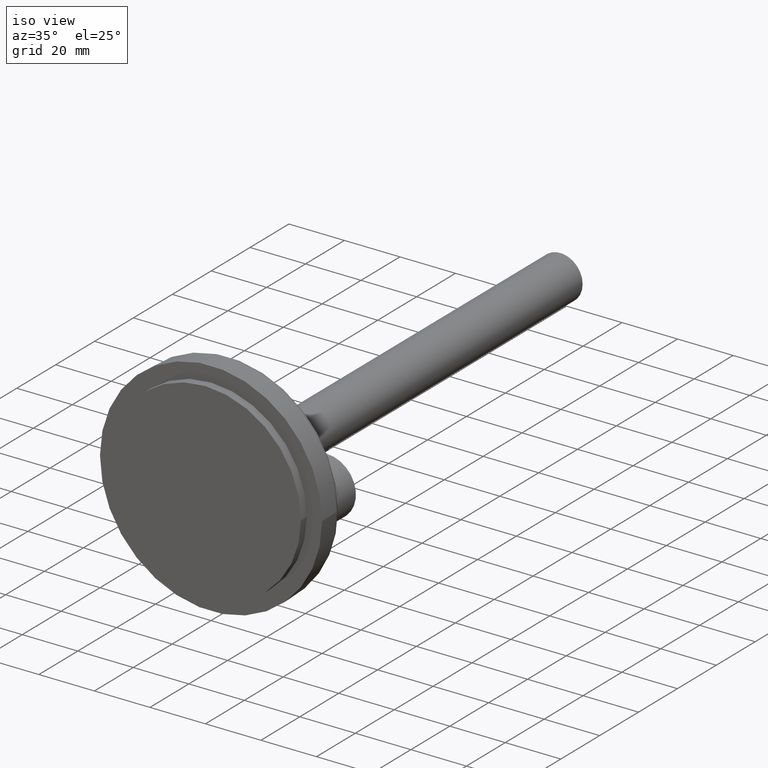
[diagram: clean part render]
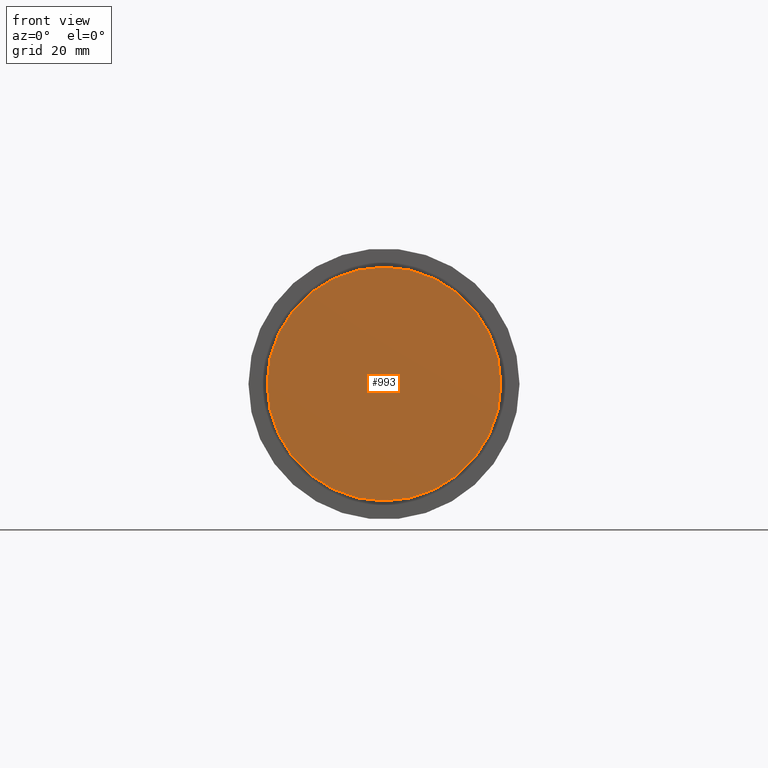
[diagram: tour spotlight — one face highlighted and labeled with its STEP entity id]
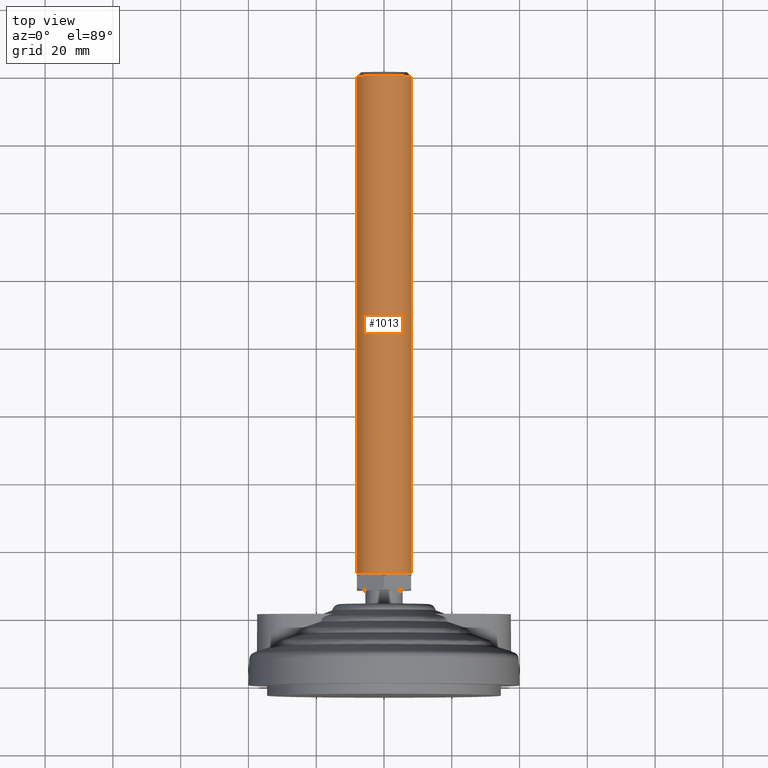
[diagram: tour spotlight — one face highlighted and labeled with its STEP entity id]
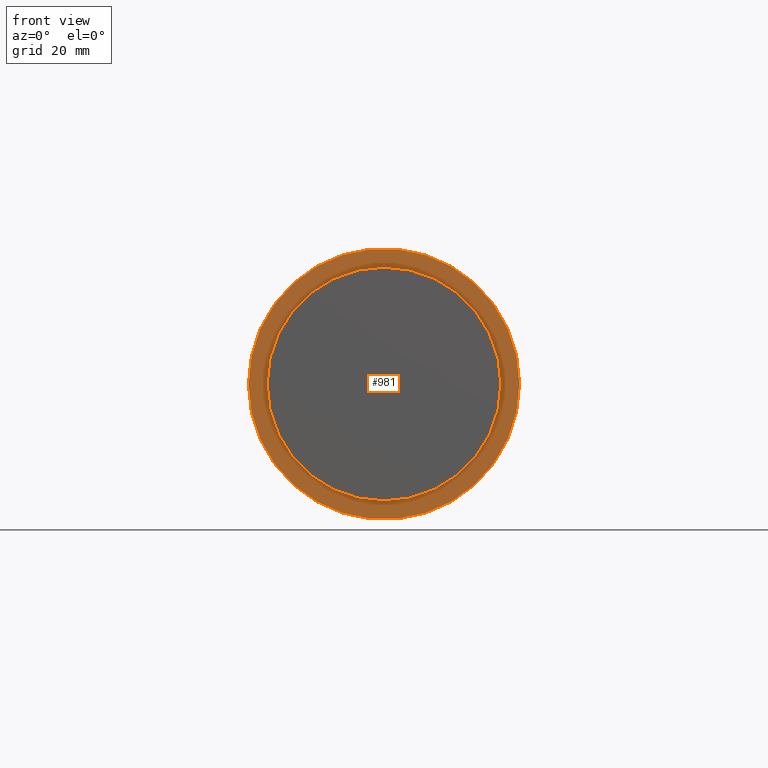
[diagram: tour spotlight — one face highlighted and labeled with its STEP entity id]
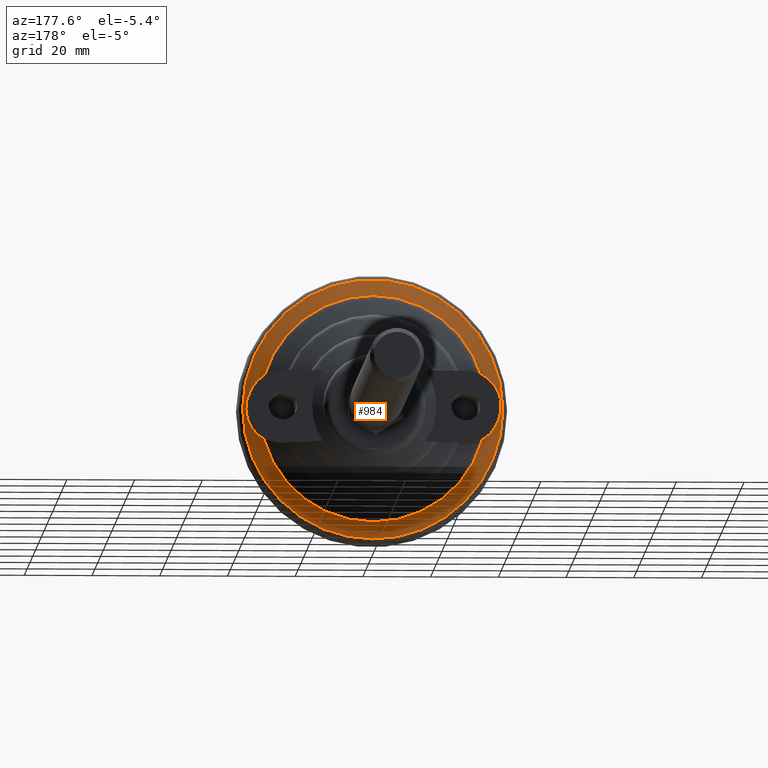
[diagram: tour spotlight — one face highlighted and labeled with its STEP entity id]
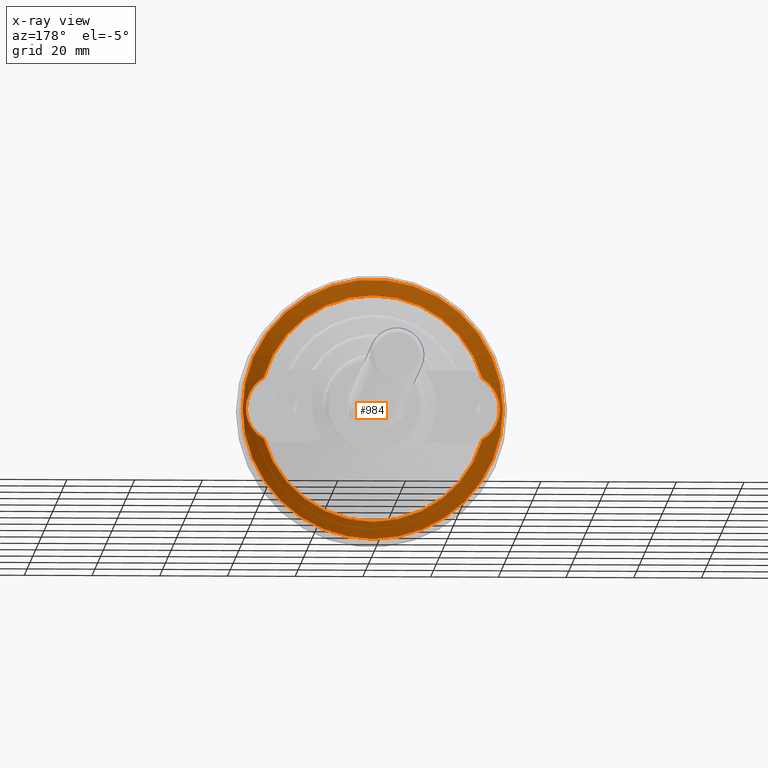
[diagram: x-ray of the same camera — body ghosted, this tour face saturated]
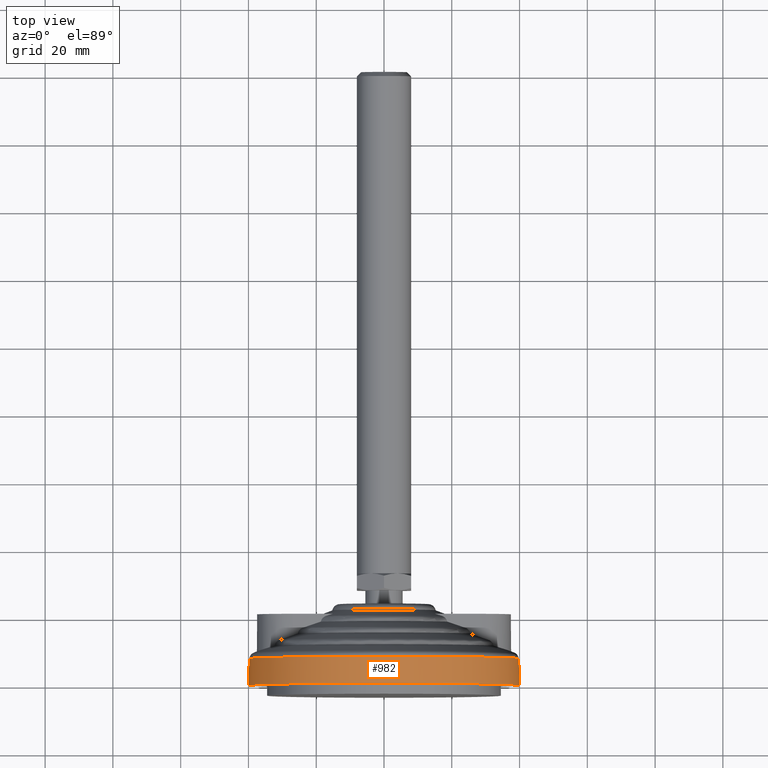
[diagram: tour spotlight — one face highlighted and labeled with its STEP entity id]
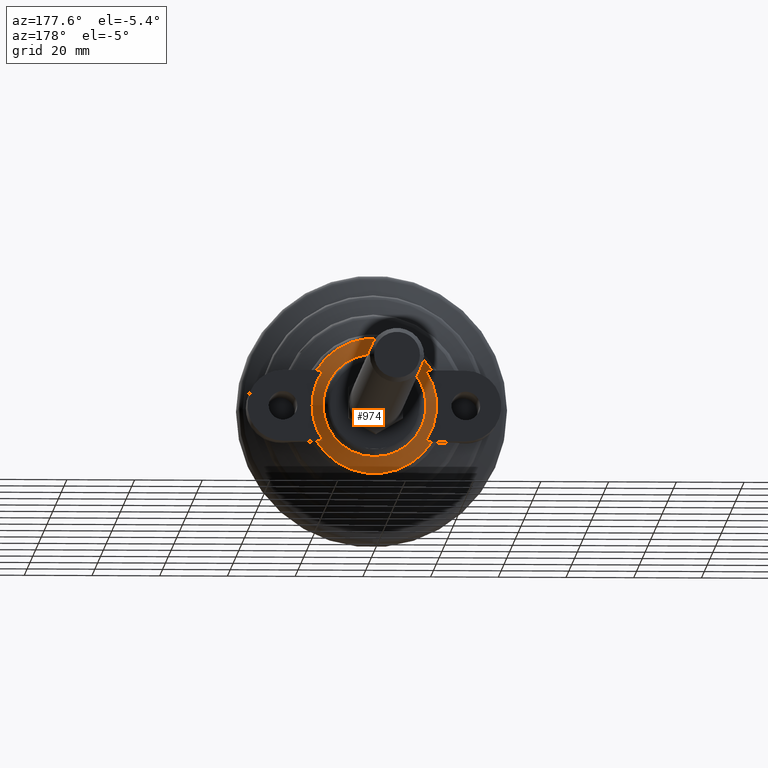
[diagram: tour spotlight — one face highlighted and labeled with its STEP entity id]
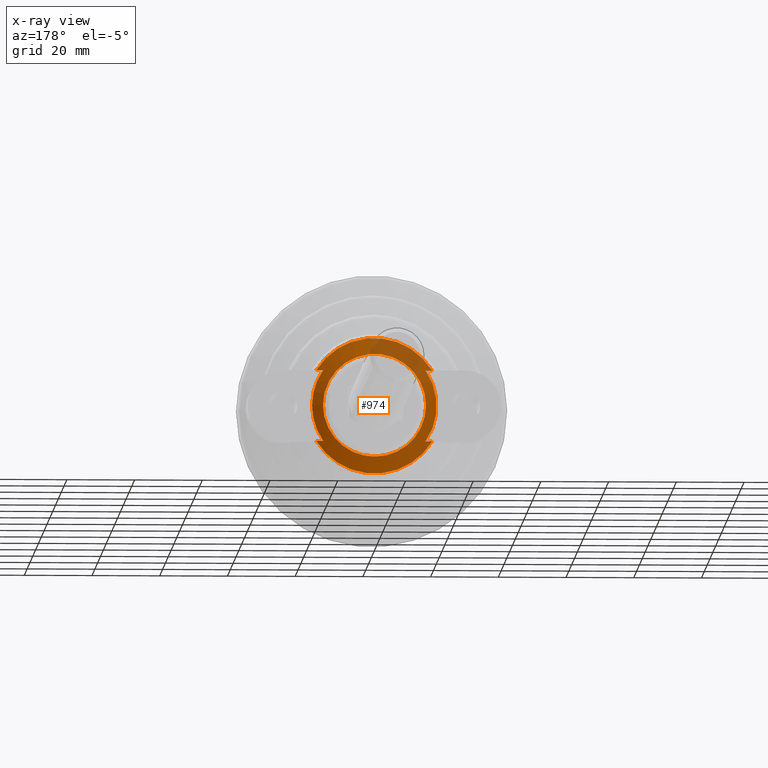
[diagram: x-ray of the same camera — body ghosted, this tour face saturated]
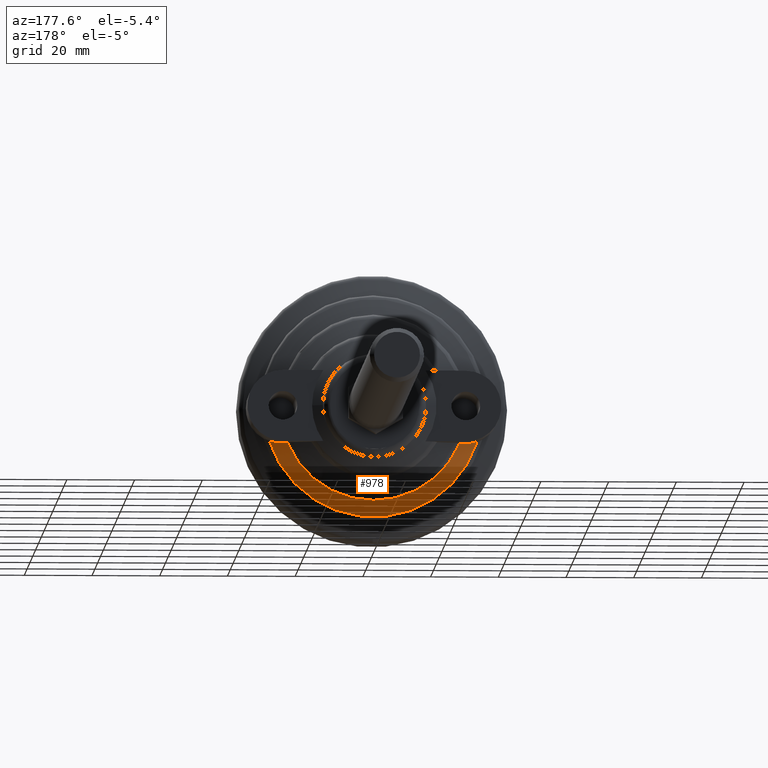
[diagram: tour spotlight — one face highlighted and labeled with its STEP entity id]
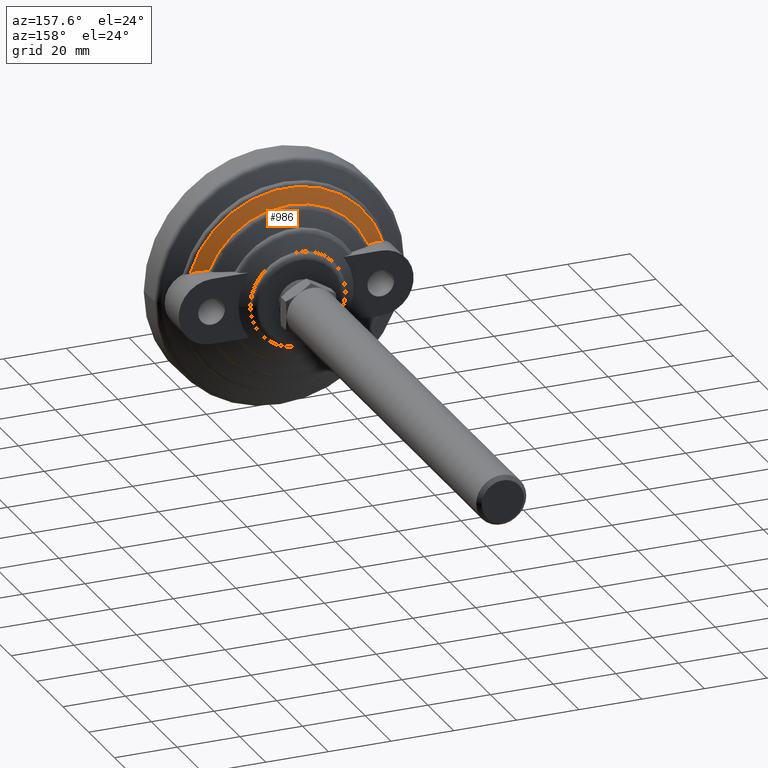
[diagram: tour spotlight — one face highlighted and labeled with its STEP entity id]
A machine part: a face-by-face anatomy tour. The part has 58 B-rep faces; the first image is the clean iso view, then the 8 largest visible faces are spotlighted one at a time (largest first), each with its STEP entity span.

Face 1 — front view, entity #993. In plain terms, the highlighted planar face has unit normal (0, -1, 0).
Definition (entity closure, byte-faithful):
#132=PLANE('',#1148);
#176=FACE_OUTER_BOUND('',#238,.T.);
#238=EDGE_LOOP('',(#842,#843));
#345=CIRCLE('',#1114,34.5);
#346=CIRCLE('',#1115,34.5);
#444=VERTEX_POINT('',#1844);
#445=VERTEX_POINT('',#1846);
#567=EDGE_CURVE('',#444,#445,#345,.T.);
#568=EDGE_CURVE('',#445,#444,#346,.T.);
#842=ORIENTED_EDGE('',*,*,#568,.F.);
#843=ORIENTED_EDGE('',*,*,#567,.F.);
#993=ADVANCED_FACE('',(#176),#132,.T.);
#1114=AXIS2_PLACEMENT_3D('',#1847,#1317,#1318);
#1115=AXIS2_PLACEMENT_3D('',#1848,#1319,#1320);
#1148=AXIS2_PLACEMENT_3D('',#1897,#1388,#1389);
#1317=DIRECTION('center_axis',(0.,1.,0.));
#1318=DIRECTION('ref_axis',(-1.,0.,0.));
#1319=DIRECTION('center_axis',(0.,1.,0.));
#1320=DIRECTION('ref_axis',(-1.,0.,0.));
#1388=DIRECTION('center_axis',(0.,-1.,0.));
#1389=DIRECTION('ref_axis',(0.,0.,-1.));
#1844=CARTESIAN_POINT('',(34.5,-3.,-4.22503145705837E-15));
#1846=CARTESIAN_POINT('',(-34.5,-3.,0.));
#1847=CARTESIAN_POINT('Origin',(0.,-3.,0.));
#1848=CARTESIAN_POINT('Origin',(0.,-3.,0.));
#1897=CARTESIAN_POINT('Origin',(-17.25,-3.,0.));

Face 2 — top view, entity #1013. In plain terms, the highlighted cylindrical surface (bore or boss wall) has radius 8 mm, axis along (0, -1, 0).
Definition (entity closure, byte-faithful):
#196=FACE_OUTER_BOUND('',#258,.T.);
#258=EDGE_LOOP('',(#922,#923,#924,#925,#926,#927,#928,#929,#930,#931));
#288=LINE('',#2042,#313);
#313=VECTOR('',#1471,8.);
#367=CIRCLE('',#1157,8.);
#368=CIRCLE('',#1159,8.);
#369=CIRCLE('',#1161,8.);
#370=CIRCLE('',#1163,8.);
#371=CIRCLE('',#1165,8.);
#372=CIRCLE('',#1167,8.);
#379=CIRCLE('',#1181,8.);
#380=CIRCLE('',#1182,8.);
#460=VERTEX_POINT('',#1901);
#466=VERTEX_POINT('',#1922);
#471=VERTEX_POINT('',#1942);
#473=VERTEX_POINT('',#1957);
#477=VERTEX_POINT('',#1975);
#481=VERTEX_POINT('',#1993);
#483=VERTEX_POINT('',#2032);
#484=VERTEX_POINT('',#2033);
#622=EDGE_CURVE('',#477,#473,#367,.T.);
#623=EDGE_CURVE('',#481,#477,#368,.T.);
#624=EDGE_CURVE('',#460,#481,#369,.T.);
#625=EDGE_CURVE('',#471,#460,#370,.T.);
#626=EDGE_CURVE('',#466,#471,#371,.T.);
#627=EDGE_CURVE('',#473,#466,#372,.T.);
#634=EDGE_CURVE('',#483,#484,#379,.T.);
#635=EDGE_CURVE('',#484,#483,#380,.T.);
#639=EDGE_CURVE('',#466,#484,#288,.T.);
#922=ORIENTED_EDGE('',*,*,#623,.F.);
#923=ORIENTED_EDGE('',*,*,#624,.F.);
#924=ORIENTED_EDGE('',*,*,#625,.F.);
#925=ORIENTED_EDGE('',*,*,#626,.F.);
#926=ORIENTED_EDGE('',*,*,#639,.T.);
#927=ORIENTED_EDGE('',*,*,#635,.T.);
#928=ORIENTED_EDGE('',*,*,#634,.T.);
#929=ORIENTED_EDGE('',*,*,#639,.F.);
#930=ORIENTED_EDGE('',*,*,#627,.F.);
#931=ORIENTED_EDGE('',*,*,#622,.F.);
#958=CYLINDRICAL_SURFACE('',#1185,8.);
#1013=ADVANCED_FACE('',(#196),#958,.T.);
#1157=AXIS2_PLACEMENT_3D('',#2008,#1412,#1413);
#1159=AXIS2_PLACEMENT_3D('',#2010,#1416,#1417);
#1161=AXIS2_PLACEMENT_3D('',#2012,#1420,#1421);
#1163=AXIS2_PLACEMENT_3D('',#2014,#1424,#1425);
#1165=AXIS2_PLACEMENT_3D('',#2016,#1428,#1429);
#1167=AXIS2_PLACEMENT_3D('',#2018,#1432,#1433);
#1181=AXIS2_PLACEMENT_3D('',#2034,#1460,#1461);
#1182=AXIS2_PLACEMENT_3D('',#2035,#1462,#1463);
#1185=AXIS2_PLACEMENT_3D('',#2041,#1469,#1470);
#1412=DIRECTION('center_axis',(0.,-1.,0.));
#1413=DIRECTION('ref_axis',(1.,0.,0.));
#1416=DIRECTION('center_axis',(0.,-1.,0.));
#1417=DIRECTION('ref_axis',(1.,0.,0.));
#1420=DIRECTION('center_axis',(0.,-1.,0.));
#1421=DIRECTION('ref_axis',(1.,0.,0.));
#1424=DIRECTION('center_axis',(0.,-1.,0.));
#1425=DIRECTION('ref_axis',(1.,0.,0.));
#1428=DIRECTION('center_axis',(0.,-1.,0.));
#1429=DIRECTION('ref_axis',(1.,0.,0.));
#1432=DIRECTION('center_axis',(0.,-1.,0.));
#1433=DIRECTION('ref_axis',(1.,0.,0.));
#1460=DIRECTION('center_axis',(0.,-1.,0.));
#1461=DIRECTION('ref_axis',(1.,0.,0.));
#1462=DIRECTION('center_axis',(0.,-1.,0.));
#1463=DIRECTION('ref_axis',(1.,0.,0.));
#1469=DIRECTION('center_axis',(0.,-1.,0.));
#1470=DIRECTION('ref_axis',(1.,0.,0.));
#1471=DIRECTION('',(0.,1.,0.));
#1901=CARTESIAN_POINT('',(3.99999999999999,33.,-6.92820323027551));
#1922=CARTESIAN_POINT('',(-8.,33.,0.));
#1942=CARTESIAN_POINT('',(-3.99999999999999,33.,-6.92820323027551));
#1957=CARTESIAN_POINT('',(-3.99999999999999,33.,6.92820323027551));
#1975=CARTESIAN_POINT('',(3.99999999999999,33.,6.92820323027551));
#1993=CARTESIAN_POINT('',(8.,33.,0.));
#2008=CARTESIAN_POINT('Origin',(0.,33.,0.));
#2010=CARTESIAN_POINT('Origin',(0.,33.,0.));
#2012=CARTESIAN_POINT('Origin',(0.,33.,0.));
#2014=CARTESIAN_POINT('Origin',(0.,33.,0.));
#2016=CARTESIAN_POINT('Origin',(0.,33.,0.));
#2018=CARTESIAN_POINT('Origin',(0.,33.,0.));
#2032=CARTESIAN_POINT('',(8.,179.773,0.));
#2033=CARTESIAN_POINT('',(-8.,179.773,-9.79717439317883E-16));
#2034=CARTESIAN_POINT('Origin',(0.,179.773,0.));
#2035=CARTESIAN_POINT('Origin',(0.,179.773,0.));
#2041=CARTESIAN_POINT('Origin',(0.,106.3865,0.));
#2042=CARTESIAN_POINT('',(-8.,106.3865,-9.79717439317883E-16));

Face 3 — front view, entity #981. In plain terms, the highlighted planar face has unit normal (0, -1, 0).
Definition (entity closure, byte-faithful):
#99=FACE_BOUND('',#225,.T.);
#130=PLANE('',#1116);
#164=FACE_OUTER_BOUND('',#224,.T.);
#224=EDGE_LOOP('',(#773,#774));
#225=EDGE_LOOP('',(#775,#776));
#343=CIRCLE('',#1112,34.5);
#344=CIRCLE('',#1113,34.5);
#347=CIRCLE('',#1117,40.);
#348=CIRCLE('',#1118,40.);
#442=VERTEX_POINT('',#1840);
#443=VERTEX_POINT('',#1841);
#446=VERTEX_POINT('',#1850);
#447=VERTEX_POINT('',#1851);
#564=EDGE_CURVE('',#442,#443,#343,.T.);
#565=EDGE_CURVE('',#443,#442,#344,.T.);
#569=EDGE_CURVE('',#446,#447,#347,.T.);
#570=EDGE_CURVE('',#447,#446,#348,.T.);
#773=ORIENTED_EDGE('',*,*,#569,.F.);
#774=ORIENTED_EDGE('',*,*,#570,.F.);
#775=ORIENTED_EDGE('',*,*,#564,.T.);
#776=ORIENTED_EDGE('',*,*,#565,.T.);
#981=ADVANCED_FACE('',(#164,#99),#130,.T.);
#1112=AXIS2_PLACEMENT_3D('',#1842,#1312,#1313);
#1113=AXIS2_PLACEMENT_3D('',#1843,#1314,#1315);
#1116=AXIS2_PLACEMENT_3D('',#1849,#1321,#1322);
#1117=AXIS2_PLACEMENT_3D('',#1852,#1323,#1324);
#1118=AXIS2_PLACEMENT_3D('',#1853,#1325,#1326);
#1312=DIRECTION('center_axis',(0.,1.,0.));
#1313=DIRECTION('ref_axis',(-1.,0.,0.));
#1314=DIRECTION('center_axis',(0.,1.,0.));
#1315=DIRECTION('ref_axis',(-1.,0.,0.));
#1321=DIRECTION('center_axis',(0.,-1.,0.));
#1322=DIRECTION('ref_axis',(0.,0.,-1.));
#1323=DIRECTION('center_axis',(0.,1.,0.));
#1324=DIRECTION('ref_axis',(-1.,0.,0.));
#1325=DIRECTION('center_axis',(0.,1.,0.));
#1326=DIRECTION('ref_axis',(-1.,0.,0.));
#1840=CARTESIAN_POINT('',(-34.5,0.,0.));
#1841=CARTESIAN_POINT('',(34.5,0.,-4.22503145705837E-15));
#1842=CARTESIAN_POINT('Origin',(0.,0.,0.));
#1843=CARTESIAN_POINT('Origin',(0.,0.,0.));
#1849=CARTESIAN_POINT('Origin',(-37.25,0.,0.));
#1850=CARTESIAN_POINT('',(-40.,0.,0.));
#1851=CARTESIAN_POINT('',(40.,-5.55111512312578E-16,-4.89858719658941E-15));
#1852=CARTESIAN_POINT('Origin',(0.,0.,0.));
#1853=CARTESIAN_POINT('Origin',(0.,0.,0.));

Face 4 — auxiliary view, entity #984. An x-ray twin of the same camera follows (body ghosted, this face saturated) — the face is partly hidden behind the body. In plain terms, the highlighted conical surface has half-angle 68.505 deg.
Definition (entity closure, byte-faithful):
#44=CONICAL_SURFACE('',#1128,35.990964176577,1.19563632056962);
#105=B_SPLINE_CURVE_WITH_KNOTS('',3,(#1555,#1556,#1557,#1558,#1559,#1560,
#1561,#1562,#1563,#1564,#1565,#1566),.UNSPECIFIED.,.F.,.F.,(4,2,2,2,2,4),
(4.51569651905723,4.77049480673629,5.02529309441534,5.2800913820944,5.53488966977346,
5.59532760587313),.UNSPECIFIED.);
#106=B_SPLINE_CURVE_WITH_KNOTS('',3,(#1568,#1569,#1570,#1571,#1572,#1573,
#1574,#1575,#1576,#1577,#1578,#1579),.UNSPECIFIED.,.F.,.F.,(4,2,2,2,2,4),
(3.43606543224134,3.49650336834101,3.75130165602007,4.00609994369912,4.26089823137818,
4.51569651905723),.UNSPECIFIED.);
#117=B_SPLINE_CURVE_WITH_KNOTS('',3,(#1740,#1741,#1742,#1743,#1744,#1745,
#1746,#1747,#1748,#1749,#1750,#1751,#1752,#1753,#1754,#1755,#1756,#1757,
#1758,#1759,#1760,#1761),.UNSPECIFIED.,.F.,.F.,(4,2,2,2,2,2,2,2,2,2,4),
(3.43606543224134,3.49650336834101,3.75130165602007,4.00609994369912,4.26089823137818,
4.51569651905723,4.77049480673629,5.02529309441534,5.2800913820944,5.53488966977346,
5.59532760587313),.UNSPECIFIED.);
#167=FACE_OUTER_BOUND('',#228,.T.);
#228=EDGE_LOOP('',(#792,#793,#794,#795,#796,#797,#798,#799,#800,#801));
#279=LINE('',#1871,#304);
#304=VECTOR('',#1348,35.990964176577);
#342=CIRCLE('',#1110,33.552825195003);
#352=CIRCLE('',#1124,38.429103158151);
#353=CIRCLE('',#1125,38.429103158151);
#355=CIRCLE('',#1127,38.429103158151);
#356=CIRCLE('',#1129,33.552825195003);
#403=VERTEX_POINT('',#1543);
#404=VERTEX_POINT('',#1554);
#405=VERTEX_POINT('',#1567);
#430=VERTEX_POINT('',#1728);
#431=VERTEX_POINT('',#1739);
#451=VERTEX_POINT('',#1863);
#452=VERTEX_POINT('',#1864);
#453=VERTEX_POINT('',#1866);
#511=EDGE_CURVE('',#404,#403,#105,.T.);
#512=EDGE_CURVE('',#405,#404,#106,.T.);
#542=EDGE_CURVE('',#431,#430,#117,.T.);
#563=EDGE_CURVE('',#405,#430,#342,.T.);
#575=EDGE_CURVE('',#451,#452,#352,.T.);
#576=EDGE_CURVE('',#453,#451,#353,.T.);
#578=EDGE_CURVE('',#452,#453,#355,.T.);
#579=EDGE_CURVE('',#404,#452,#279,.T.);
#580=EDGE_CURVE('',#431,#403,#356,.T.);
#792=ORIENTED_EDGE('',*,*,#512,.T.);
#793=ORIENTED_EDGE('',*,*,#579,.T.);
#794=ORIENTED_EDGE('',*,*,#578,.T.);
#795=ORIENTED_EDGE('',*,*,#576,.T.);
#796=ORIENTED_EDGE('',*,*,#575,.T.);
#797=ORIENTED_EDGE('',*,*,#579,.F.);
#798=ORIENTED_EDGE('',*,*,#511,.T.);
#799=ORIENTED_EDGE('',*,*,#580,.F.);
#800=ORIENTED_EDGE('',*,*,#542,.T.);
#801=ORIENTED_EDGE('',*,*,#563,.F.);
#984=ADVANCED_FACE('',(#167),#44,.T.);
#1110=AXIS2_PLACEMENT_3D('',#1838,#1308,#1309);
#1124=AXIS2_PLACEMENT_3D('',#1865,#1338,#1339);
#1125=AXIS2_PLACEMENT_3D('',#1867,#1340,#1341);
#1127=AXIS2_PLACEMENT_3D('',#1869,#1344,#1345);
#1128=AXIS2_PLACEMENT_3D('',#1870,#1346,#1347);
#1129=AXIS2_PLACEMENT_3D('',#1872,#1349,#1350);
#1308=DIRECTION('center_axis',(0.,1.,0.));
#1309=DIRECTION('ref_axis',(-1.,0.,0.));
#1338=DIRECTION('center_axis',(0.,1.,0.));
#1339=DIRECTION('ref_axis',(-1.,0.,0.));
#1340=DIRECTION('center_axis',(0.,1.,0.));
#1341=DIRECTION('ref_axis',(-1.,0.,0.));
#1344=DIRECTION('center_axis',(0.,1.,0.));
#1345=DIRECTION('ref_axis',(-1.,0.,0.));
#1346=DIRECTION('center_axis',(0.,-1.,0.));
#1347=DIRECTION('ref_axis',(-1.,0.,0.));
#1348=DIRECTION('',(0.930449004116338,-0.366421411408933,-1.13947139466092E-16));
#1349=DIRECTION('center_axis',(0.,1.,0.));
#1350=DIRECTION('ref_axis',(-1.,0.,0.));
#1543=CARTESIAN_POINT('',(32.3063347882672,11.634402129208,9.0605083254101));
#1554=CARTESIAN_POINT('',(37.5,10.0799597506078,-3.12888001687015E-15));
#1555=CARTESIAN_POINT('Ctrl Pts',(37.5,10.0799597506078,-1.66533453693773E-15));
#1556=CARTESIAN_POINT('Ctrl Pts',(37.5,10.0799597506078,0.849327625596851));
#1557=CARTESIAN_POINT('Ctrl Pts',(37.3954079477496,10.1095211444229,1.71625612304318));
#1558=CARTESIAN_POINT('Ctrl Pts',(36.9700150310205,10.2308804167138,3.40717504130201));
#1559=CARTESIAN_POINT('Ctrl Pts',(36.6493270133366,10.3226629521174,4.23119495069075));
#1560=CARTESIAN_POINT('Ctrl Pts',(35.8178332302516,10.5643788194163,5.76700451409472));
#1561=CARTESIAN_POINT('Ctrl Pts',(35.3059647272951,10.7146726535325,6.48071000741379));
#1562=CARTESIAN_POINT('Ctrl Pts',(34.1415479553644,11.0639803282255,7.74512395475072));
#1563=CARTESIAN_POINT('Ctrl Pts',(33.4889272146619,11.2631137489724,8.29573262740808));
#1564=CARTESIAN_POINT('Ctrl Pts',(32.6416513835052,11.5284668447145,8.85775183258476));
#1565=CARTESIAN_POINT('Ctrl Pts',(32.4756282120752,11.5807529569084,8.9613607332537));
#1566=CARTESIAN_POINT('Ctrl Pts',(32.3063347882672,11.634402129208,9.06050832541009));
#1567=CARTESIAN_POINT('',(32.3063347882672,11.634402129208,-9.0605083254101));
#1568=CARTESIAN_POINT('Ctrl Pts',(32.3063347882672,11.634402129208,-9.06050832541009));
#1569=CARTESIAN_POINT('Ctrl Pts',(32.4756282120752,11.5807529569084,-8.9613607332537));
#1570=CARTESIAN_POINT('Ctrl Pts',(32.6416513835052,11.5284668447145,-8.85775183258476));
#1571=CARTESIAN_POINT('Ctrl Pts',(33.4889272146619,11.2631137489724,-8.29573262740808));
#1572=CARTESIAN_POINT('Ctrl Pts',(34.1415479553644,11.0639803282255,-7.74512395475072));
#1573=CARTESIAN_POINT('Ctrl Pts',(35.3059647272951,10.7146726535325,-6.48071000741379));
#1574=CARTESIAN_POINT('Ctrl Pts',(35.8178332302516,10.5643788194163,-5.76700451409472));
#1575=CARTESIAN_POINT('Ctrl Pts',(36.6493270133366,10.3226629521174,-4.23119495069075));
#1576=CARTESIAN_POINT('Ctrl Pts',(36.9700150310205,10.2308804167138,-3.40717504130203));
#1577=CARTESIAN_POINT('Ctrl Pts',(37.3954079477496,10.1095211444229,-1.71625612304319));
#1578=CARTESIAN_POINT('Ctrl Pts',(37.5,10.0799597506078,-0.849327625596855));
#1579=CARTESIAN_POINT('Ctrl Pts',(37.5,10.0799597506078,-1.94289029309402E-15));
#1728=CARTESIAN_POINT('',(-32.3063347882672,11.634402129208,-9.0605083254101));
#1739=CARTESIAN_POINT('',(-32.3063347882672,11.634402129208,9.0605083254101));
#1740=CARTESIAN_POINT('Ctrl Pts',(-32.3063347882672,11.634402129208,9.06050832541009));
#1741=CARTESIAN_POINT('Ctrl Pts',(-32.4756282120752,11.5807529569084,8.9613607332537));
#1742=CARTESIAN_POINT('Ctrl Pts',(-32.6416513835052,11.5284668447145,8.85775183258476));
#1743=CARTESIAN_POINT('Ctrl Pts',(-33.4889272146619,11.2631137489724,8.29573262740808));
#1744=CARTESIAN_POINT('Ctrl Pts',(-34.1415479553644,11.0639803282255,7.74512395475072));
#1745=CARTESIAN_POINT('Ctrl Pts',(-35.3059647272951,10.7146726535325,6.48071000741379));
#1746=CARTESIAN_POINT('Ctrl Pts',(-35.8178332302516,10.5643788194163,5.76700451409473));
#1747=CARTESIAN_POINT('Ctrl Pts',(-36.6493270133366,10.3226629521174,4.23119495069076));
#1748=CARTESIAN_POINT('Ctrl Pts',(-36.9700150310205,10.2308804167138,3.40717504130202));
#1749=CARTESIAN_POINT('Ctrl Pts',(-37.3954079477496,10.1095211444229,1.71625612304319));
#1750=CARTESIAN_POINT('Ctrl Pts',(-37.5,10.0799597506078,0.849327625596855));
#1751=CARTESIAN_POINT('Ctrl Pts',(-37.5,10.0799597506078,-0.849327625596851));
#1752=CARTESIAN_POINT('Ctrl Pts',(-37.3954079477496,10.1095211444229,-1.71625612304319));
#1753=CARTESIAN_POINT('Ctrl Pts',(-36.9700150310205,10.2308804167138,-3.40717504130202));
#1754=CARTESIAN_POINT('Ctrl Pts',(-36.6493270133366,10.3226629521174,-4.23119495069075));
#1755=CARTESIAN_POINT('Ctrl Pts',(-35.8178332302516,10.5643788194163,-5.76700451409472));
#1756=CARTESIAN_POINT('Ctrl Pts',(-35.3059647272951,10.7146726535325,-6.48071000741379));
#1757=CARTESIAN_POINT('Ctrl Pts',(-34.1415479553644,11.0639803282255,-7.74512395475072));
#1758=CARTESIAN_POINT('Ctrl Pts',(-33.4889272146619,11.2631137489724,-8.29573262740808));
#1759=CARTESIAN_POINT('Ctrl Pts',(-32.6416513835052,11.5284668447145,-8.85775183258476));
#1760=CARTESIAN_POINT('Ctrl Pts',(-32.4756282120752,11.5807529569084,-8.9613607332537));
#1761=CARTESIAN_POINT('Ctrl Pts',(-32.3063347882672,11.634402129208,-9.06050832541009));
#1838=CARTESIAN_POINT('Origin',(0.,11.634402129208,0.));
#1863=CARTESIAN_POINT('',(-38.429103158151,9.7140683486631,0.));
#1864=CARTESIAN_POINT('',(38.429103158151,9.71406834866309,-4.70620781767331E-15));
#1865=CARTESIAN_POINT('Origin',(0.,9.7140683486631,0.));
#1866=CARTESIAN_POINT('',(-4.70620781767331E-15,9.7140683486631,-38.429103158151));
#1867=CARTESIAN_POINT('Origin',(0.,9.7140683486631,0.));
#1869=CARTESIAN_POINT('Origin',(0.,9.7140683486631,0.));
#1870=CARTESIAN_POINT('Origin',(0.,10.6742352389355,0.));
#1871=CARTESIAN_POINT('',(35.990964176577,10.6742352389355,-4.40762190770721E-15));
#1872=CARTESIAN_POINT('Origin',(0.,11.634402129208,0.));

Face 5 — top view, entity #982. In plain terms, the highlighted conical surface has half-angle 1.939 deg.
Definition (entity closure, byte-faithful):
#43=CONICAL_SURFACE('',#1119,39.865665237939,0.0338437678790746);
#165=FACE_OUTER_BOUND('',#226,.T.);
#226=EDGE_LOOP('',(#777,#778,#779,#780,#781,#782,#783));
#278=LINE('',#1861,#303);
#303=VECTOR('',#1335,39.865665237939);
#347=CIRCLE('',#1117,40.);
#348=CIRCLE('',#1118,40.);
#349=CIRCLE('',#1120,39.731330475878);
#350=CIRCLE('',#1121,39.731330475878);
#351=CIRCLE('',#1122,39.731330475878);
#446=VERTEX_POINT('',#1850);
#447=VERTEX_POINT('',#1851);
#448=VERTEX_POINT('',#1855);
#449=VERTEX_POINT('',#1856);
#450=VERTEX_POINT('',#1858);
#569=EDGE_CURVE('',#446,#447,#347,.T.);
#570=EDGE_CURVE('',#447,#446,#348,.T.);
#571=EDGE_CURVE('',#448,#449,#349,.T.);
#572=EDGE_CURVE('',#450,#448,#350,.T.);
#573=EDGE_CURVE('',#449,#450,#351,.T.);
#574=EDGE_CURVE('',#449,#447,#278,.T.);
#777=ORIENTED_EDGE('',*,*,#571,.F.);
#778=ORIENTED_EDGE('',*,*,#572,.F.);
#779=ORIENTED_EDGE('',*,*,#573,.F.);
#780=ORIENTED_EDGE('',*,*,#574,.T.);
#781=ORIENTED_EDGE('',*,*,#570,.T.);
#782=ORIENTED_EDGE('',*,*,#569,.T.);
#783=ORIENTED_EDGE('',*,*,#574,.F.);
#982=ADVANCED_FACE('',(#165),#43,.T.);
#1117=AXIS2_PLACEMENT_3D('',#1852,#1323,#1324);
#1118=AXIS2_PLACEMENT_3D('',#1853,#1325,#1326);
#1119=AXIS2_PLACEMENT_3D('',#1854,#1327,#1328);
#1120=AXIS2_PLACEMENT_3D('',#1857,#1329,#1330);
#1121=AXIS2_PLACEMENT_3D('',#1859,#1331,#1332);
#1122=AXIS2_PLACEMENT_3D('',#1860,#1333,#1334);
#1323=DIRECTION('center_axis',(0.,1.,0.));
#1324=DIRECTION('ref_axis',(-1.,0.,0.));
#1325=DIRECTION('center_axis',(0.,1.,0.));
#1326=DIRECTION('ref_axis',(-1.,0.,0.));
#1327=DIRECTION('center_axis',(0.,-1.,0.));
#1328=DIRECTION('ref_axis',(-1.,0.,0.));
#1329=DIRECTION('center_axis',(0.,1.,0.));
#1330=DIRECTION('ref_axis',(-1.,0.,0.));
#1331=DIRECTION('center_axis',(0.,1.,0.));
#1332=DIRECTION('ref_axis',(-1.,0.,0.));
#1333=DIRECTION('center_axis',(0.,1.,0.));
#1334=DIRECTION('ref_axis',(-1.,0.,0.));
#1335=DIRECTION('',(0.0338373074702642,-0.999427354350061,-4.14387502852239E-18));
#1850=CARTESIAN_POINT('',(-40.,0.,0.));
#1851=CARTESIAN_POINT('',(40.,-5.55111512312578E-16,-4.89858719658941E-15));
#1852=CARTESIAN_POINT('Origin',(0.,0.,0.));
#1853=CARTESIAN_POINT('Origin',(0.,0.,0.));
#1854=CARTESIAN_POINT('Origin',(0.,3.96774583680605,0.));
#1855=CARTESIAN_POINT('',(-39.731330475878,7.9354916736121,0.));
#1856=CARTESIAN_POINT('',(39.731330475878,7.9354916736121,-4.86568466931497E-15));
#1857=CARTESIAN_POINT('Origin',(0.,7.9354916736121,0.));
#1858=CARTESIAN_POINT('',(-4.86568466931497E-15,7.9354916736121,-39.731330475878));
#1859=CARTESIAN_POINT('Origin',(0.,7.9354916736121,0.));
#1860=CARTESIAN_POINT('Origin',(0.,7.9354916736121,0.));
#1861=CARTESIAN_POINT('',(39.865665237939,3.96774583680605,-4.88213593295219E-15));

Face 6 — auxiliary view, entity #974. An x-ray twin of the same camera follows (body ghosted, this face saturated) — the face is partly hidden behind the body. In plain terms, the highlighted conical surface has half-angle 69.278 deg.
Definition (entity closure, byte-faithful):
#40=CONICAL_SURFACE('',#1095,17.6517402814315,1.20913440747109);
#61=(
BOUNDED_CURVE()
B_SPLINE_CURVE(2,(#1614,#1615,#1616),.UNSPECIFIED.,.F.,.F.)
B_SPLINE_CURVE_WITH_KNOTS((3,3),(0.,0.210575083617424),.UNSPECIFIED.)
CURVE()
GEOMETRIC_REPRESENTATION_ITEM()
RATIONAL_B_SPLINE_CURVE((1.,1.0013643307786,1.))
REPRESENTATION_ITEM('')
);
#64=(
BOUNDED_CURVE()
B_SPLINE_CURVE(2,(#1650,#1651,#1652),.UNSPECIFIED.,.F.,.F.)
B_SPLINE_CURVE_WITH_KNOTS((3,3),(0.,0.210575083617424),.UNSPECIFIED.)
CURVE()
GEOMETRIC_REPRESENTATION_ITEM()
RATIONAL_B_SPLINE_CURVE((1.,1.0013643307786,1.))
REPRESENTATION_ITEM('')
);
#67=(
BOUNDED_CURVE()
B_SPLINE_CURVE(2,(#1687,#1688,#1689),.UNSPECIFIED.,.F.,.F.)
B_SPLINE_CURVE_WITH_KNOTS((3,3),(0.,0.210575083617424),.UNSPECIFIED.)
CURVE()
GEOMETRIC_REPRESENTATION_ITEM()
RATIONAL_B_SPLINE_CURVE((1.,1.0013643307786,1.))
REPRESENTATION_ITEM('')
);
#70=(
BOUNDED_CURVE()
B_SPLINE_CURVE(2,(#1782,#1783,#1784),.UNSPECIFIED.,.F.,.F.)
B_SPLINE_CURVE_WITH_KNOTS((3,3),(0.,0.210575083617424),.UNSPECIFIED.)
CURVE()
GEOMETRIC_REPRESENTATION_ITEM()
RATIONAL_B_SPLINE_CURVE((1.,1.0013643307786,1.))
REPRESENTATION_ITEM('')
);
#157=FACE_OUTER_BOUND('',#217,.T.);
#217=EDGE_LOOP('',(#731,#732,#733,#734,#735,#736,#737,#738,#739,#740,#741,
#742,#743,#744));
#276=LINE('',#1826,#301);
#301=VECTOR('',#1285,17.6517402814315);
#329=CIRCLE('',#1085,18.3939652558082);
#331=CIRCLE('',#1093,18.3939652558082);
#332=CIRCLE('',#1094,18.3939652558082);
#333=CIRCLE('',#1096,15.228558804653);
#334=CIRCLE('',#1097,15.228558804653);
#335=CIRCLE('',#1098,15.228558804653);
#336=CIRCLE('',#1099,20.07492175821);
#337=CIRCLE('',#1100,20.07492175821);
#410=VERTEX_POINT('',#1604);
#411=VERTEX_POINT('',#1605);
#414=VERTEX_POINT('',#1613);
#419=VERTEX_POINT('',#1649);
#424=VERTEX_POINT('',#1685);
#425=VERTEX_POINT('',#1686);
#433=VERTEX_POINT('',#1780);
#434=VERTEX_POINT('',#1781);
#438=VERTEX_POINT('',#1816);
#439=VERTEX_POINT('',#1820);
#440=VERTEX_POINT('',#1821);
#441=VERTEX_POINT('',#1823);
#518=EDGE_CURVE('',#410,#411,#329,.T.);
#522=EDGE_CURVE('',#414,#410,#61,.T.);
#528=EDGE_CURVE('',#411,#419,#64,.T.);
#534=EDGE_CURVE('',#424,#425,#67,.T.);
#545=EDGE_CURVE('',#433,#434,#70,.T.);
#551=EDGE_CURVE('',#425,#438,#331,.T.);
#552=EDGE_CURVE('',#438,#433,#332,.T.);
#553=EDGE_CURVE('',#439,#440,#333,.T.);
#554=EDGE_CURVE('',#441,#439,#334,.T.);
#555=EDGE_CURVE('',#440,#441,#335,.T.);
#556=EDGE_CURVE('',#440,#438,#276,.T.);
#557=EDGE_CURVE('',#434,#414,#336,.T.);
#558=EDGE_CURVE('',#419,#424,#337,.T.);
#731=ORIENTED_EDGE('',*,*,#553,.F.);
#732=ORIENTED_EDGE('',*,*,#554,.F.);
#733=ORIENTED_EDGE('',*,*,#555,.F.);
#734=ORIENTED_EDGE('',*,*,#556,.T.);
#735=ORIENTED_EDGE('',*,*,#552,.T.);
#736=ORIENTED_EDGE('',*,*,#545,.T.);
#737=ORIENTED_EDGE('',*,*,#557,.T.);
#738=ORIENTED_EDGE('',*,*,#522,.T.);
#739=ORIENTED_EDGE('',*,*,#518,.T.);
#740=ORIENTED_EDGE('',*,*,#528,.T.);
#741=ORIENTED_EDGE('',*,*,#558,.T.);
#742=ORIENTED_EDGE('',*,*,#534,.T.);
#743=ORIENTED_EDGE('',*,*,#551,.T.);
#744=ORIENTED_EDGE('',*,*,#556,.F.);
#974=ADVANCED_FACE('',(#157),#40,.T.);
#1085=AXIS2_PLACEMENT_3D('',#1606,#1251,#1252);
#1093=AXIS2_PLACEMENT_3D('',#1817,#1273,#1274);
#1094=AXIS2_PLACEMENT_3D('',#1818,#1275,#1276);
#1095=AXIS2_PLACEMENT_3D('',#1819,#1277,#1278);
#1096=AXIS2_PLACEMENT_3D('',#1822,#1279,#1280);
#1097=AXIS2_PLACEMENT_3D('',#1824,#1281,#1282);
#1098=AXIS2_PLACEMENT_3D('',#1825,#1283,#1284);
#1099=AXIS2_PLACEMENT_3D('',#1827,#1286,#1287);
#1100=AXIS2_PLACEMENT_3D('',#1828,#1288,#1289);
#1251=DIRECTION('center_axis',(-1.33016286709162E-34,1.,-1.490666865497E-33));
#1252=DIRECTION('ref_axis',(-1.,0.,0.));
#1273=DIRECTION('center_axis',(-1.33016286709162E-34,1.,-1.490666865497E-33));
#1274=DIRECTION('ref_axis',(-1.,0.,0.));
#1275=DIRECTION('center_axis',(-1.33016286709162E-34,1.,-1.490666865497E-33));
#1276=DIRECTION('ref_axis',(-1.,0.,0.));
#1277=DIRECTION('center_axis',(0.,-1.,0.));
#1278=DIRECTION('ref_axis',(-1.,0.,0.));
#1279=DIRECTION('center_axis',(0.,1.,0.));
#1280=DIRECTION('ref_axis',(-1.,0.,0.));
#1281=DIRECTION('center_axis',(0.,1.,0.));
#1282=DIRECTION('ref_axis',(-1.,0.,0.));
#1283=DIRECTION('center_axis',(0.,1.,0.));
#1284=DIRECTION('ref_axis',(-1.,0.,0.));
#1285=DIRECTION('',(0.935310080129967,-0.353829131089109,-1.14542449584142E-16));
#1286=DIRECTION('center_axis',(0.,1.,0.));
#1287=DIRECTION('ref_axis',(-1.,0.,0.));
#1288=DIRECTION('center_axis',(0.,1.,0.));
#1289=DIRECTION('ref_axis',(-1.,0.,0.));
#1604=CARTESIAN_POINT('',(-15.1025811645519,21.,-10.5));
#1605=CARTESIAN_POINT('',(-15.1025811645519,21.,10.5));
#1606=CARTESIAN_POINT('Origin',(0.,21.,0.));
#1613=CARTESIAN_POINT('',(-17.1100112097641,20.364091768838,-10.5));
#1614=CARTESIAN_POINT('Ctrl Pts',(-17.1100112097641,20.364091768838,-10.5));
#1615=CARTESIAN_POINT('Ctrl Pts',(-16.0624373332957,20.70186020539,-10.5));
#1616=CARTESIAN_POINT('Ctrl Pts',(-15.1025811645519,21.,-10.5));
#1649=CARTESIAN_POINT('',(-17.1100112097641,20.364091768838,10.5));
#1650=CARTESIAN_POINT('Ctrl Pts',(-15.1025811645519,21.,10.5));
#1651=CARTESIAN_POINT('Ctrl Pts',(-16.0624373332957,20.70186020539,10.5));
#1652=CARTESIAN_POINT('Ctrl Pts',(-17.1100112097641,20.364091768838,10.5));
#1685=CARTESIAN_POINT('',(17.1100112097641,20.364091768838,10.5));
#1686=CARTESIAN_POINT('',(15.1025811645519,21.,10.5));
#1687=CARTESIAN_POINT('Ctrl Pts',(17.1100112097641,20.364091768838,10.5));
#1688=CARTESIAN_POINT('Ctrl Pts',(16.0624373332957,20.70186020539,10.5));
#1689=CARTESIAN_POINT('Ctrl Pts',(15.1025811645519,21.,10.5));
#1780=CARTESIAN_POINT('',(15.1025811645519,21.,-10.5));
#1781=CARTESIAN_POINT('',(17.1100112097641,20.364091768838,-10.5));
#1782=CARTESIAN_POINT('Ctrl Pts',(15.1025811645519,21.,-10.5));
#1783=CARTESIAN_POINT('Ctrl Pts',(16.0624373332957,20.70186020539,-10.5));
#1784=CARTESIAN_POINT('Ctrl Pts',(17.1100112097641,20.364091768838,-10.5));
#1816=CARTESIAN_POINT('',(18.3939652558082,21.,-2.25261106741531E-15));
#1817=CARTESIAN_POINT('Origin',(0.,21.,0.));
#1818=CARTESIAN_POINT('Origin',(0.,21.,0.));
#1819=CARTESIAN_POINT('Origin',(0.,21.280784761477,0.));
#1820=CARTESIAN_POINT('',(-15.228558804653,22.197477754116,0.));
#1821=CARTESIAN_POINT('',(15.228558804653,22.197477754116,-1.86496057957455E-15));
#1822=CARTESIAN_POINT('Origin',(0.,22.197477754116,0.));
#1823=CARTESIAN_POINT('',(-1.86496057957455E-15,22.197477754116,-15.228558804653));
#1824=CARTESIAN_POINT('Origin',(0.,22.197477754116,0.));
#1825=CARTESIAN_POINT('Origin',(0.,22.197477754116,0.));
#1826=CARTESIAN_POINT('',(17.6517402814315,21.280784761477,-2.16171472350355E-15));
#1827=CARTESIAN_POINT('Origin',(0.,20.364091768838,0.));
#1828=CARTESIAN_POINT('Origin',(0.,20.364091768838,0.));

Face 7 — auxiliary view, entity #978. In plain terms, the highlighted conical surface has half-angle 68.88 deg.
Definition (entity closure, byte-faithful):
#42=CONICAL_SURFACE('',#1107,29.8804665177825,1.20217691399191);
#63=(
BOUNDED_CURVE()
B_SPLINE_CURVE(2,(#1644,#1645,#1646),.UNSPECIFIED.,.F.,.F.)
B_SPLINE_CURVE_WITH_KNOTS((3,3),(0.362606543798788,0.53958314247249),
 .UNSPECIFIED.)
CURVE()
GEOMETRIC_REPRESENTATION_ITEM()
RATIONAL_B_SPLINE_CURVE((1.00159787675078,1.00118887451594,1.))
REPRESENTATION_ITEM('')
);
#71=(
BOUNDED_CURVE()
B_SPLINE_CURVE(2,(#1787,#1788,#1789),.UNSPECIFIED.,.F.,.F.)
B_SPLINE_CURVE_WITH_KNOTS((3,3),(0.,0.176976598673702),.UNSPECIFIED.)
CURVE()
GEOMETRIC_REPRESENTATION_ITEM()
RATIONAL_B_SPLINE_CURVE((1.,1.00118887451594,1.00159787675078))
REPRESENTATION_ITEM('')
);
#108=B_SPLINE_CURVE_WITH_KNOTS('',3,(#1592,#1593,#1594,#1595,#1596,#1597),
 .UNSPECIFIED.,.F.,.F.,(4,2,4),(2.8665167227233,2.96107987676726,3.25168735559793),
 .UNSPECIFIED.);
#115=B_SPLINE_CURVE_WITH_KNOTS('',3,(#1722,#1723,#1724,#1725,#1726,#1727),
 .UNSPECIFIED.,.F.,.F.,(4,2,4),(5.76722868500192,6.05783616383258,6.15239931787654),
 .UNSPECIFIED.);
#161=FACE_OUTER_BOUND('',#221,.T.);
#221=EDGE_LOOP('',(#757,#758,#759,#760,#761,#762));
#340=CIRCLE('',#1106,27.50624303865);
#341=CIRCLE('',#1108,32.254689996915);
#406=VERTEX_POINT('',#1580);
#407=VERTEX_POINT('',#1591);
#417=VERTEX_POINT('',#1632);
#418=VERTEX_POINT('',#1643);
#429=VERTEX_POINT('',#1721);
#435=VERTEX_POINT('',#1786);
#514=EDGE_CURVE('',#407,#406,#108,.T.);
#526=EDGE_CURVE('',#418,#417,#63,.T.);
#540=EDGE_CURVE('',#429,#418,#115,.T.);
#547=EDGE_CURVE('',#435,#407,#71,.T.);
#561=EDGE_CURVE('',#435,#417,#340,.T.);
#562=EDGE_CURVE('',#406,#429,#341,.T.);
#757=ORIENTED_EDGE('',*,*,#547,.T.);
#758=ORIENTED_EDGE('',*,*,#514,.T.);
#759=ORIENTED_EDGE('',*,*,#562,.T.);
#760=ORIENTED_EDGE('',*,*,#540,.T.);
#761=ORIENTED_EDGE('',*,*,#526,.T.);
#762=ORIENTED_EDGE('',*,*,#561,.F.);
#978=ADVANCED_FACE('',(#161),#42,.T.);
#1106=AXIS2_PLACEMENT_3D('',#1834,#1300,#1301);
#1107=AXIS2_PLACEMENT_3D('',#1835,#1302,#1303);
#1108=AXIS2_PLACEMENT_3D('',#1836,#1304,#1305);
#1300=DIRECTION('center_axis',(0.,1.,0.));
#1301=DIRECTION('ref_axis',(-1.,0.,0.));
#1302=DIRECTION('center_axis',(0.,-1.,0.));
#1303=DIRECTION('ref_axis',(-1.,0.,0.));
#1304=DIRECTION('center_axis',(0.,1.,0.));
#1305=DIRECTION('ref_axis',(-1.,0.,0.));
#1580=CARTESIAN_POINT('',(30.7243523480942,13.353673555576,-9.81729084764454));
#1591=CARTESIAN_POINT('',(27.,14.6225422536565,-10.5));
#1592=CARTESIAN_POINT('Ctrl Pts',(27.,14.6225422536565,-10.5));
#1593=CARTESIAN_POINT('Ctrl Pts',(27.3100625601747,14.5109163877395,-10.5));
#1594=CARTESIAN_POINT('Ctrl Pts',(27.6208747110214,14.4006946398294,-10.4862470382709));
#1595=CARTESIAN_POINT('Ctrl Pts',(28.8835374298768,13.9591533364495,-10.373863285386));
#1596=CARTESIAN_POINT('Ctrl Pts',(29.830006323037,13.6428573128391,-10.1565758673228));
#1597=CARTESIAN_POINT('Ctrl Pts',(30.7243523480942,13.353673555576,-9.81729084764453));
#1632=CARTESIAN_POINT('',(-25.4232847228929,15.187883375214,-10.5));
#1643=CARTESIAN_POINT('',(-27.,14.6225422536565,-10.5));
#1644=CARTESIAN_POINT('Ctrl Pts',(-27.,14.6225422536565,-10.5));
#1645=CARTESIAN_POINT('Ctrl Pts',(-26.1912121867038,14.9137145898182,-10.5));
#1646=CARTESIAN_POINT('Ctrl Pts',(-25.4232847228929,15.187883375214,-10.5));
#1721=CARTESIAN_POINT('',(-30.7243523480942,13.353673555576,-9.81729084764454));
#1722=CARTESIAN_POINT('Ctrl Pts',(-30.7243523480942,13.353673555576,-9.81729084764453));
#1723=CARTESIAN_POINT('Ctrl Pts',(-29.830006323037,13.6428573128391,-10.1565758673228));
#1724=CARTESIAN_POINT('Ctrl Pts',(-28.8835374298768,13.9591533364495,-10.373863285386));
#1725=CARTESIAN_POINT('Ctrl Pts',(-27.6208747110214,14.4006946398294,-10.4862470382709));
#1726=CARTESIAN_POINT('Ctrl Pts',(-27.3100625601747,14.5109163877395,-10.5));
#1727=CARTESIAN_POINT('Ctrl Pts',(-27.,14.6225422536565,-10.5));
#1786=CARTESIAN_POINT('',(25.4232847228929,15.187883375214,-10.5));
#1787=CARTESIAN_POINT('Ctrl Pts',(25.4232847228929,15.187883375214,-10.5));
#1788=CARTESIAN_POINT('Ctrl Pts',(26.1912121867038,14.9137145898182,-10.5));
#1789=CARTESIAN_POINT('Ctrl Pts',(27.,14.6225422536565,-10.5));
#1834=CARTESIAN_POINT('Origin',(0.,15.187883375214,0.));
#1835=CARTESIAN_POINT('Origin',(0.,14.270778465395,0.));
#1836=CARTESIAN_POINT('Origin',(0.,13.353673555576,0.));

Face 8 — auxiliary view, entity #986. In plain terms, the highlighted conical surface has half-angle 68.88 deg.
Definition (entity closure, byte-faithful):
#45=CONICAL_SURFACE('',#1132,29.8804665177825,1.20217691399191);
#65=(
BOUNDED_CURVE()
B_SPLINE_CURVE(2,(#1656,#1657,#1658),.UNSPECIFIED.,.F.,.F.)
B_SPLINE_CURVE_WITH_KNOTS((3,3),(0.,0.176976598673702),.UNSPECIFIED.)
CURVE()
GEOMETRIC_REPRESENTATION_ITEM()
RATIONAL_B_SPLINE_CURVE((1.,1.00118887451594,1.00159787675078))
REPRESENTATION_ITEM('')
);
#69=(
BOUNDED_CURVE()
B_SPLINE_CURVE(2,(#1716,#1717,#1718),.UNSPECIFIED.,.F.,.F.)
B_SPLINE_CURVE_WITH_KNOTS((3,3),(0.362606543798788,0.53958314247249),
 .UNSPECIFIED.)
CURVE()
GEOMETRIC_REPRESENTATION_ITEM()
RATIONAL_B_SPLINE_CURVE((1.00159787675078,1.00118887451594,1.))
REPRESENTATION_ITEM('')
);
#103=B_SPLINE_CURVE_WITH_KNOTS('',3,(#1537,#1538,#1539,#1540,#1541,#1542),
 .UNSPECIFIED.,.F.,.F.,(4,2,4),(5.76722868500191,6.05783616383258,6.15239931787654),
 .UNSPECIFIED.);
#119=B_SPLINE_CURVE_WITH_KNOTS('',3,(#1773,#1774,#1775,#1776,#1777,#1778),
 .UNSPECIFIED.,.F.,.F.,(4,2,4),(2.8665167227233,2.96107987676726,3.25168735559793),
 .UNSPECIFIED.);
#169=FACE_OUTER_BOUND('',#230,.T.);
#230=EDGE_LOOP('',(#806,#807,#808,#809,#810,#811));
#357=CIRCLE('',#1131,32.254689996915);
#358=CIRCLE('',#1133,27.50624303865);
#401=VERTEX_POINT('',#1535);
#402=VERTEX_POINT('',#1536);
#420=VERTEX_POINT('',#1653);
#421=VERTEX_POINT('',#1655);
#428=VERTEX_POINT('',#1705);
#432=VERTEX_POINT('',#1762);
#509=EDGE_CURVE('',#401,#402,#103,.T.);
#530=EDGE_CURVE('',#421,#420,#65,.T.);
#538=EDGE_CURVE('',#402,#428,#69,.T.);
#544=EDGE_CURVE('',#420,#432,#119,.T.);
#581=EDGE_CURVE('',#432,#401,#357,.T.);
#582=EDGE_CURVE('',#421,#428,#358,.T.);
#806=ORIENTED_EDGE('',*,*,#538,.T.);
#807=ORIENTED_EDGE('',*,*,#582,.F.);
#808=ORIENTED_EDGE('',*,*,#530,.T.);
#809=ORIENTED_EDGE('',*,*,#544,.T.);
#810=ORIENTED_EDGE('',*,*,#581,.T.);
#811=ORIENTED_EDGE('',*,*,#509,.T.);
#986=ADVANCED_FACE('',(#169),#45,.T.);
#1131=AXIS2_PLACEMENT_3D('',#1874,#1353,#1354);
#1132=AXIS2_PLACEMENT_3D('',#1875,#1355,#1356);
#1133=AXIS2_PLACEMENT_3D('',#1876,#1357,#1358);
#1353=DIRECTION('center_axis',(0.,1.,0.));
#1354=DIRECTION('ref_axis',(-1.,0.,0.));
#1355=DIRECTION('center_axis',(0.,-1.,0.));
#1356=DIRECTION('ref_axis',(-1.,0.,0.));
#1357=DIRECTION('center_axis',(0.,1.,0.));
#1358=DIRECTION('ref_axis',(-1.,0.,0.));
#1535=CARTESIAN_POINT('',(30.7243523480942,13.353673555576,9.81729084764454));
#1536=CARTESIAN_POINT('',(27.,14.6225422536565,10.5));
#1537=CARTESIAN_POINT('Ctrl Pts',(30.7243523480942,13.353673555576,9.81729084764453));
#1538=CARTESIAN_POINT('Ctrl Pts',(29.830006323037,13.6428573128391,10.1565758673228));
#1539=CARTESIAN_POINT('Ctrl Pts',(28.8835374298768,13.9591533364495,10.373863285386));
#1540=CARTESIAN_POINT('Ctrl Pts',(27.6208747110214,14.4006946398294,10.4862470382709));
#1541=CARTESIAN_POINT('Ctrl Pts',(27.3100625601747,14.5109163877395,10.5));
#1542=CARTESIAN_POINT('Ctrl Pts',(27.,14.6225422536565,10.5));
#1653=CARTESIAN_POINT('',(-27.,14.6225422536565,10.5));
#1655=CARTESIAN_POINT('',(-25.4232847228929,15.187883375214,10.5));
#1656=CARTESIAN_POINT('Ctrl Pts',(-25.4232847228929,15.187883375214,10.5));
#1657=CARTESIAN_POINT('Ctrl Pts',(-26.1912121867038,14.9137145898182,10.5));
#1658=CARTESIAN_POINT('Ctrl Pts',(-27.,14.6225422536565,10.5));
#1705=CARTESIAN_POINT('',(25.4232847228929,15.187883375214,10.5));
#1716=CARTESIAN_POINT('Ctrl Pts',(27.,14.6225422536565,10.5));
#1717=CARTESIAN_POINT('Ctrl Pts',(26.1912121867038,14.9137145898182,10.5));
#1718=CARTESIAN_POINT('Ctrl Pts',(25.4232847228929,15.187883375214,10.5));
#1762=CARTESIAN_POINT('',(-30.7243523480942,13.353673555576,9.81729084764454));
#1773=CARTESIAN_POINT('Ctrl Pts',(-27.,14.6225422536565,10.5));
#1774=CARTESIAN_POINT('Ctrl Pts',(-27.3100625601747,14.5109163877395,10.5));
#1775=CARTESIAN_POINT('Ctrl Pts',(-27.6208747110214,14.4006946398294,10.4862470382709));
#1776=CARTESIAN_POINT('Ctrl Pts',(-28.8835374298768,13.9591533364495,10.373863285386));
#1777=CARTESIAN_POINT('Ctrl Pts',(-29.830006323037,13.6428573128391,10.1565758673228));
#1778=CARTESIAN_POINT('Ctrl Pts',(-30.7243523480942,13.353673555576,9.81729084764453));
#1874=CARTESIAN_POINT('Origin',(0.,13.353673555576,0.));
#1875=CARTESIAN_POINT('Origin',(0.,14.270778465395,0.));
#1876=CARTESIAN_POINT('Origin',(0.,15.187883375214,0.));